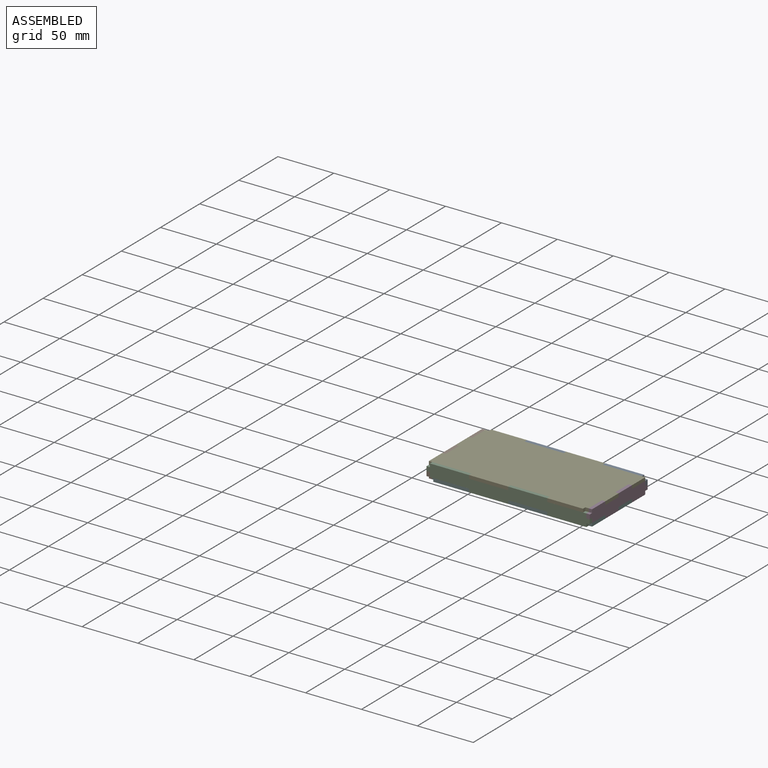
[diagram: assembled view]
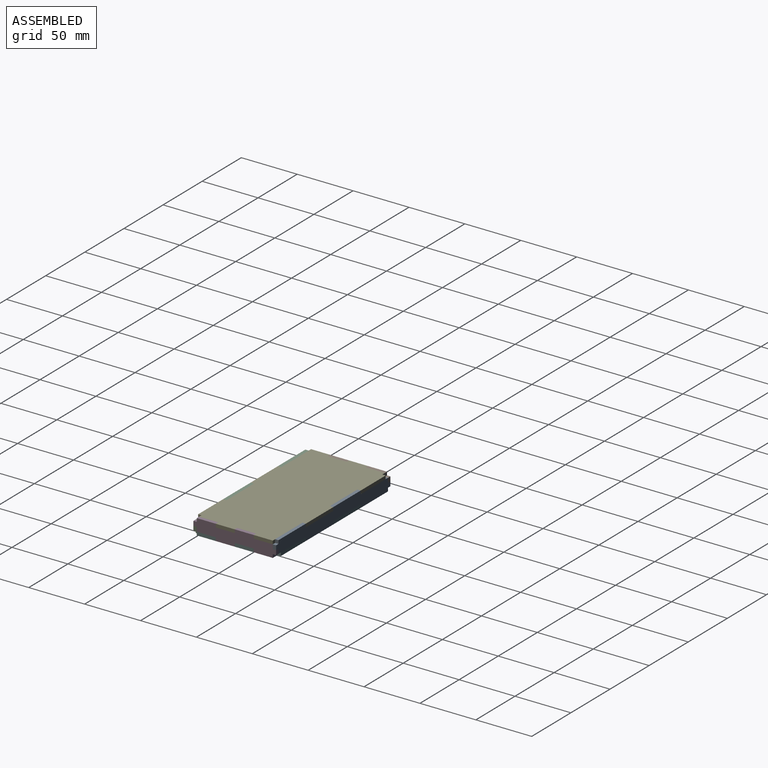
[diagram: assembled view, second angle]
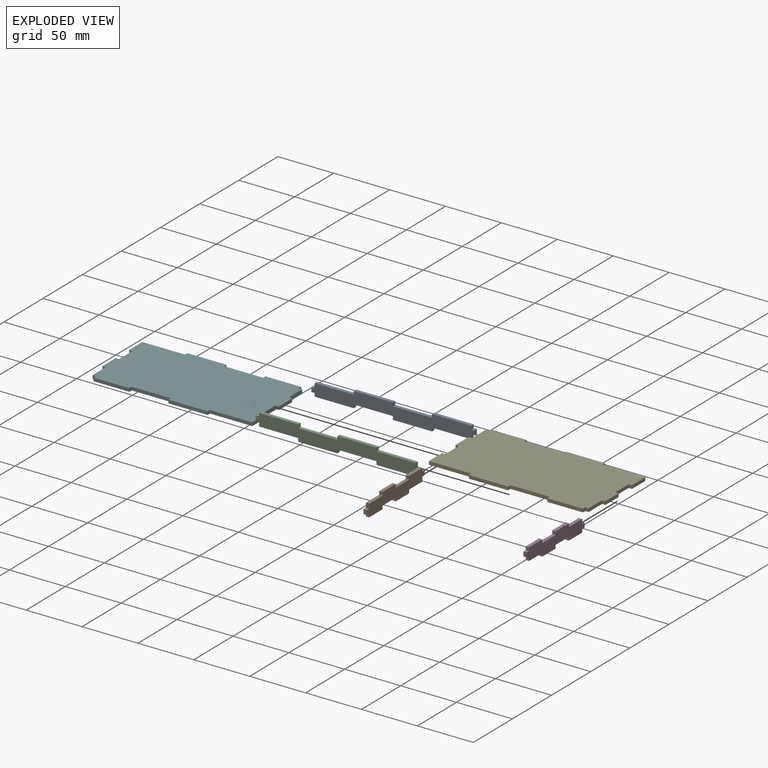
[diagram: exploded view]
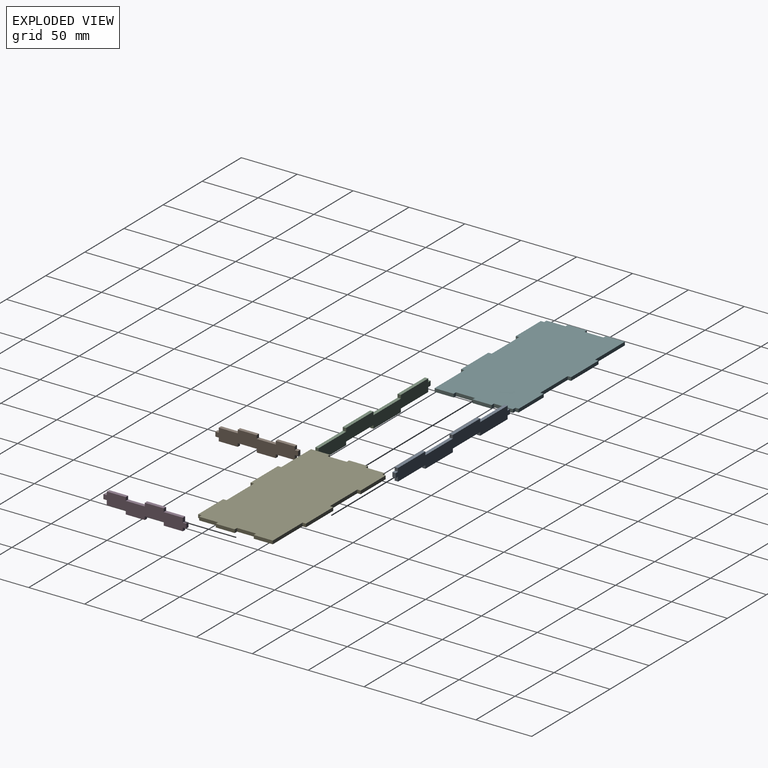
[diagram: exploded view, second angle]
ASSEMBLY  parts=6 mates=5
PART A: 26 faces, bbox 146x3x14 mm
  f0: plane 35x3mm, normal (0,0,1), area 105mm2, adj f1,f23,f24,f25
  f1: plane 3x3mm, normal (1,0,0), area 9mm2, adj f0,f2,f24,f25
  f2: plane 35x3mm, normal (0,0,1), area 105mm2, adj f1,f3,f24,f25
  f3: plane 3x3mm, normal (-1,0,0), area 9mm2, adj f2,f4,f24,f25
  f4: plane 35x3mm, normal (0,0,1), area 105mm2, adj f3,f5,f24,f25
  f5: plane 3x3mm, normal (1,0,0), area 9mm2, adj f4,f6,f24,f25
  f6: plane 35x3mm, normal (0,0,1), area 105mm2, adj f5,f7,f24,f25
  f7: plane 4x3mm, normal (1,0,0), area 12mm2, adj f6,f8,f24,f25
  f8: plane 3x3mm, normal (0,0,1), area 9mm2, adj f7,f9,f24,f25
  f9: plane 4x3mm, normal (1,0,0), area 12mm2, adj f8,f10,f24,f25
  f10: plane 3x3mm, normal (0,0,-1), area 9mm2, adj f9,f11,f24,f25
  f11: plane 3x3mm, normal (1,0,0), area 9mm2, adj f10,f12,f24,f25
  f12: plane 35x3mm, normal (0,0,-1), area 105mm2, adj f11,f13,f24,f25
  f13: plane 3x3mm, normal (-1,0,0), area 9mm2, adj f12,f14,f24,f25
  f14: plane 35x3mm, normal (0,0,-1), area 105mm2, adj f13,f15,f24,f25
  f15: plane 3x3mm, normal (1,0,0), area 9mm2, adj f14,f16,f24,f25
  f16: plane 35x3mm, normal (0,0,-1), area 105mm2, adj f15,f17,f24,f25
  f17: plane 3x3mm, normal (-1,0,0), area 9mm2, adj f16,f18,f24,f25
  f18: plane 35x3mm, normal (0,0,-1), area 105mm2, adj f17,f19,f24,f25
  f19: plane 4x3mm, normal (-1,0,0), area 12mm2, adj f18,f20,f24,f25
  f20: plane 3x3mm, normal (0,0,-1), area 9mm2, adj f19,f21,f24,f25
  f21: plane 4x3mm, normal (-1,0,0), area 12mm2, adj f20,f22,f24,f25
  f22: plane 3x3mm, normal (0,0,1), area 9mm2, adj f21,f23,f24,f25
  f23: plane 3x3mm, normal (-1,0,0), area 9mm2, adj f0,f22,f24,f25
  f24: plane 146x14mm, normal (0,1,0), area 1564mm2, adj f0,f1,f2,f3,f4,f5,f6,f7
  f25: plane 146x14mm, normal (0,-1,0), area 1564mm2, adj f0,f1,f2,f3,f4,f5,f6,f7
PART B: 26 faces, bbox 3x74x14 mm
  f0: plane 17x3mm, normal (0,0,1), area 51mm2, adj f1,f23,f24,f25
  f1: plane 3x3mm, normal (0,-1,0), area 9mm2, adj f0,f2,f24,f25
  f2: plane 17x3mm, normal (0,0,1), area 51mm2, adj f1,f3,f24,f25
  f3: plane 3x3mm, normal (0,1,0), area 9mm2, adj f2,f4,f24,f25
  f4: plane 3x3mm, normal (0,0,1), area 9mm2, adj f3,f5,f24,f25
  f5: plane 4x3mm, normal (0,1,0), area 12mm2, adj f4,f6,f24,f25
  f6: plane 3x3mm, normal (0,0,-1), area 9mm2, adj f5,f7,f24,f25
  f7: plane 4x3mm, normal (0,1,0), area 12mm2, adj f6,f8,f24,f25
  f8: plane 17x3mm, normal (0,0,-1), area 51mm2, adj f7,f9,f24,f25
  f9: plane 3x3mm, normal (0,1,0), area 9mm2, adj f8,f10,f24,f25
  f10: plane 17x3mm, normal (0,0,-1), area 51mm2, adj f9,f11,f24,f25
  f11: plane 3x3mm, normal (0,-1,0), area 9mm2, adj f10,f12,f24,f25
  f12: plane 17x3mm, normal (0,0,-1), area 51mm2, adj f11,f13,f24,f25
  f13: plane 3x3mm, normal (0,1,0), area 9mm2, adj f12,f14,f24,f25
  f14: plane 17x3mm, normal (0,0,-1), area 51mm2, adj f13,f15,f24,f25
  f15: plane 3x3mm, normal (0,-1,0), area 9mm2, adj f14,f16,f24,f25
  f16: plane 3x3mm, normal (0,0,-1), area 9mm2, adj f15,f17,f24,f25
  f17: plane 4x3mm, normal (0,-1,0), area 12mm2, adj f16,f18,f24,f25
  f18: plane 3x3mm, normal (0,0,1), area 9mm2, adj f17,f19,f24,f25
  f19: plane 4x3mm, normal (0,-1,0), area 12mm2, adj f18,f20,f24,f25
  f20: plane 17x3mm, normal (0,0,1), area 51mm2, adj f19,f21,f24,f25
  f21: plane 3x3mm, normal (0,-1,0), area 9mm2, adj f20,f22,f24,f25
  f22: plane 17x3mm, normal (0,0,1), area 51mm2, adj f21,f23,f24,f25
  f23: plane 3x3mm, normal (0,1,0), area 9mm2, adj f0,f22,f24,f25
  f24: plane 74x14mm, normal (1,0,0), area 772mm2, adj f0,f1,f2,f3,f4,f5,f6,f7
  f25: plane 74x14mm, normal (-1,0,0), area 772mm2, adj f0,f1,f2,f3,f4,f5,f6,f7
PART C: same geometry as A
PART D: 26 faces, bbox 3x74x14 mm
  f0: plane 3x3mm, normal (0,-1,0), area 9mm2, adj f1,f23,f24,f25
  f1: plane 3x3mm, normal (0,0,1), area 9mm2, adj f0,f2,f24,f25
  f2: plane 4x3mm, normal (0,-1,0), area 12mm2, adj f1,f3,f24,f25
  f3: plane 3x3mm, normal (0,0,-1), area 9mm2, adj f2,f4,f24,f25
  f4: plane 4x3mm, normal (0,-1,0), area 12mm2, adj f3,f5,f24,f25
  f5: plane 17x3mm, normal (0,0,-1), area 51mm2, adj f4,f6,f24,f25
  f6: plane 3x3mm, normal (0,-1,0), area 9mm2, adj f5,f7,f24,f25
  f7: plane 17x3mm, normal (0,0,-1), area 51mm2, adj f6,f8,f24,f25
  f8: plane 3x3mm, normal (0,1,0), area 9mm2, adj f7,f9,f24,f25
  f9: plane 17x3mm, normal (0,0,-1), area 51mm2, adj f8,f10,f24,f25
  f10: plane 3x3mm, normal (0,-1,0), area 9mm2, adj f9,f11,f24,f25
  f11: plane 17x3mm, normal (0,0,-1), area 51mm2, adj f10,f12,f24,f25
  f12: plane 3x3mm, normal (0,1,0), area 9mm2, adj f11,f13,f24,f25
  f13: plane 3x3mm, normal (0,0,-1), area 9mm2, adj f12,f14,f24,f25
  f14: plane 4x3mm, normal (0,1,0), area 12mm2, adj f13,f15,f24,f25
  f15: plane 3x3mm, normal (0,0,1), area 9mm2, adj f14,f16,f24,f25
  f16: plane 4x3mm, normal (0,1,0), area 12mm2, adj f15,f17,f24,f25
  f17: plane 17x3mm, normal (0,0,1), area 51mm2, adj f16,f18,f24,f25
  f18: plane 3x3mm, normal (0,1,0), area 9mm2, adj f17,f19,f24,f25
  f19: plane 17x3mm, normal (0,0,1), area 51mm2, adj f18,f20,f24,f25
  f20: plane 3x3mm, normal (0,-1,0), area 9mm2, adj f19,f21,f24,f25
  f21: plane 17x3mm, normal (0,0,1), area 51mm2, adj f20,f22,f24,f25
  f22: plane 3x3mm, normal (0,1,0), area 9mm2, adj f21,f23,f24,f25
  f23: plane 17x3mm, normal (0,0,1), area 51mm2, adj f0,f22,f24,f25
  f24: plane 74x14mm, normal (-1,0,0), area 772mm2, adj f0,f1,f2,f3,f4,f5,f6,f7
  f25: plane 74x14mm, normal (1,0,0), area 772mm2, adj f0,f1,f2,f3,f4,f5,f6,f7
PART E: 34 faces, bbox 146x74x3 mm
  f0: plane 3x3mm, normal (0,1,0), area 9mm2, adj f1,f31,f32,f33
  f1: plane 17x3mm, normal (-1,0,0), area 51mm2, adj f0,f2,f32,f33
  f2: plane 3x3mm, normal (0,-1,0), area 9mm2, adj f1,f3,f32,f33
  f3: plane 17x3mm, normal (-1,0,0), area 51mm2, adj f2,f4,f32,f33
  f4: plane 3x3mm, normal (0,1,0), area 9mm2, adj f3,f5,f32,f33
  f5: plane 17x3mm, normal (-1,0,0), area 51mm2, adj f4,f6,f32,f33
  f6: plane 38x3mm, normal (0,-1,0), area 114mm2, adj f5,f7,f32,f33
  f7: plane 3x3mm, normal (-1,0,0), area 9mm2, adj f6,f8,f32,f33
  f8: plane 35x3mm, normal (0,-1,0), area 105mm2, adj f7,f9,f32,f33
  f9: plane 3x3mm, normal (1,0,0), area 9mm2, adj f8,f10,f32,f33
  f10: plane 35x3mm, normal (0,-1,0), area 105mm2, adj f9,f11,f32,f33
  f11: plane 3x3mm, normal (-1,0,0), area 9mm2, adj f10,f12,f32,f33
  f12: plane 32x3mm, normal (0,-1,0), area 96mm2, adj f11,f13,f32,f33
  f13: plane 3x3mm, normal (1,0,0), area 9mm2, adj f12,f14,f32,f33
  f14: plane 3x3mm, normal (0,-1,0), area 9mm2, adj f13,f15,f32,f33
  f15: plane 17x3mm, normal (1,0,0), area 51mm2, adj f14,f16,f32,f33
  f16: plane 3x3mm, normal (0,-1,0), area 9mm2, adj f15,f17,f32,f33
  f17: plane 17x3mm, normal (1,0,0), area 51mm2, adj f16,f18,f32,f33
  f18: plane 3x3mm, normal (0,1,0), area 9mm2, adj f17,f19,f32,f33
  f19: plane 17x3mm, normal (1,0,0), area 51mm2, adj f18,f20,f32,f33
  f20: plane 3x3mm, normal (0,-1,0), area 9mm2, adj f19,f21,f32,f33
  f21: plane 17x3mm, normal (1,0,0), area 51mm2, adj f20,f22,f32,f33
  f22: plane 38x3mm, normal (0,1,0), area 114mm2, adj f21,f23,f32,f33
  f23: plane 3x3mm, normal (1,0,0), area 9mm2, adj f22,f24,f32,f33
  f24: plane 35x3mm, normal (0,1,0), area 105mm2, adj f23,f25,f32,f33
  f25: plane 3x3mm, normal (-1,0,0), area 9mm2, adj f24,f26,f32,f33
  f26: plane 35x3mm, normal (0,1,0), area 105mm2, adj f25,f27,f32,f33
  f27: plane 3x3mm, normal (1,0,0), area 9mm2, adj f26,f28,f32,f33
  f28: plane 32x3mm, normal (0,1,0), area 96mm2, adj f27,f29,f32,f33
  f29: plane 3x3mm, normal (-1,0,0), area 9mm2, adj f28,f30,f32,f33
  f30: plane 3x3mm, normal (0,1,0), area 9mm2, adj f29,f31,f32,f33
  f31: plane 17x3mm, normal (-1,0,0), area 51mm2, adj f0,f30,f32,f33
  f32: plane 146x74mm, normal (0,0,1), area 10126mm2, adj f0,f1,f2,f3,f4,f5,f6,f7
  f33: plane 146x74mm, normal (0,0,-1), area 10126mm2, adj f0,f1,f2,f3,f4,f5,f6,f7
PART F: same geometry as E
PLACE A rot(axis=(0,0,1),180deg) t=(-13.28,-13.88,-9.33)mm
PLACE B t=(-13.28,-13.88,-9.33)mm
PLACE C t=(-13.28,-13.88,-9.33)mm
PLACE D t=(-13.28,-13.88,-9.33)mm
PLACE E t=(-13.28,-13.88,-9.33)mm
PLACE F rot(axis=(0,-1,0),180deg) t=(-13.28,-13.88,-17.33)mm
MATE fastened F.f23 <-> A.f13  axis (-1,0,0) through (-48.28,21.62,-18.83)mm
MATE fastened E.f9 <-> C.f3  axis (1,0,0) through (-13.28,-49.38,-7.83)mm
MATE fastened B.f23 <-> E.f2  axis (0,1,0) through (-84.78,-13.88,-7.83)mm
MATE fastened D.f20 <-> E.f18  axis (0,-1,0) through (58.22,-13.88,-7.83)mm
MATE fastened A.f1 <-> E.f23  axis (-1,0,0) through (21.72,21.62,-7.83)mm
